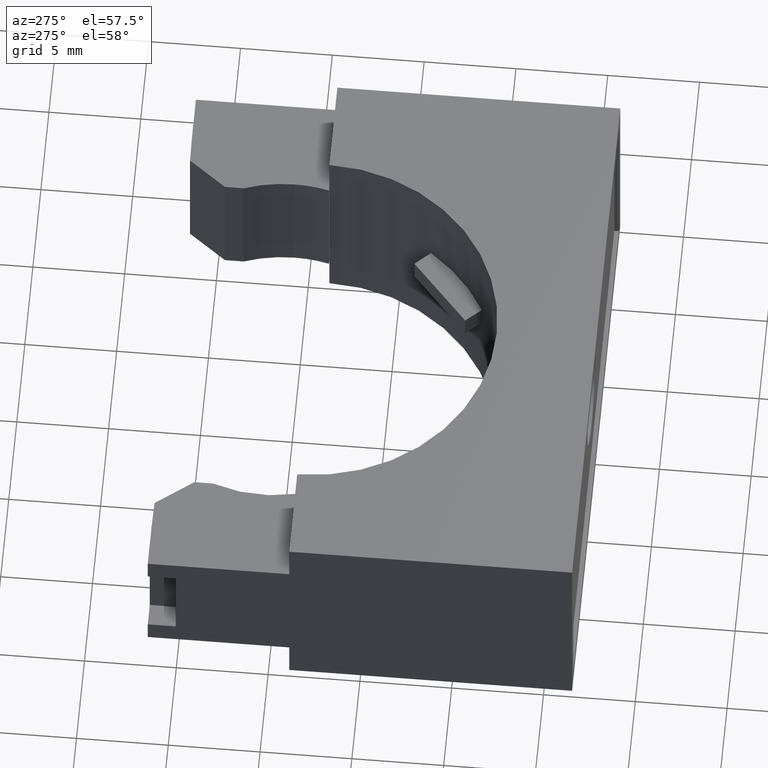
[diagram: clean part render]
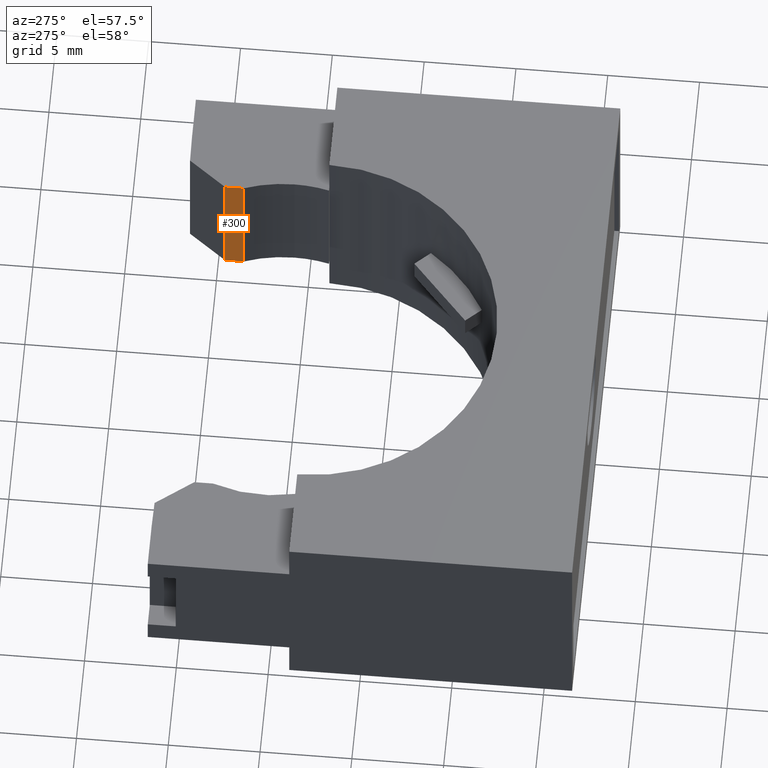
[diagram: same view with one face highlighted and labeled with its STEP entity id]
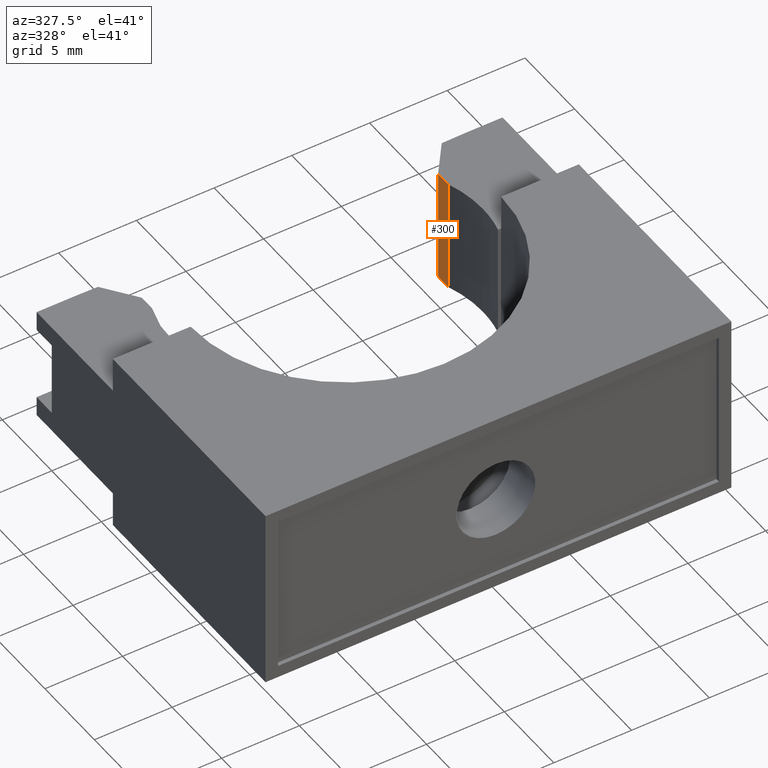
[diagram: same view with one face highlighted and labeled with its STEP entity id]
A machine part, auxiliary view. The second image highlights one B-rep face of the part: STEP entity #300.
A second angle (auxiliary view) of the same face is appended — the face is thin or edge-on in the first view.
In plain terms, the highlighted planar face has unit normal (1, -0, 0).
Its self-contained STEP definition (entity closure, byte-faithful):
#47 = EDGE_CURVE ( 'NONE', #48, #52, #1739, .T. ) ;
#48 = VERTEX_POINT ( 'NONE', #1735 ) ;
#52 = VERTEX_POINT ( 'NONE', #1755 ) ;
#288 = VERTEX_POINT ( 'NONE', #1036 ) ;
#300 = ADVANCED_FACE ( 'NONE', ( #1009 ), #1064, .F. ) ;
#301 = EDGE_LOOP ( 'NONE', ( #302, #363, #366, #368 ) ) ;
#302 = ORIENTED_EDGE ( 'NONE', *, *, #303, .T. ) ;
#303 = EDGE_CURVE ( 'NONE', #52, #288, #1048, .T. ) ;
#363 = ORIENTED_EDGE ( 'NONE', *, *, #364, .F. ) ;
#364 = EDGE_CURVE ( 'NONE', #365, #288, #1087, .T. ) ;
#365 = VERTEX_POINT ( 'NONE', #1083 ) ;
#366 = ORIENTED_EDGE ( 'NONE', *, *, #367, .T. ) ;
#367 = EDGE_CURVE ( 'NONE', #365, #48, #1118, .T. ) ;
#368 = ORIENTED_EDGE ( 'NONE', *, *, #47, .T. ) ;
#984 = DIRECTION ( 'NONE',  ( 0.0000000000000000000, 1.000000000000000000, 2.251523071701317000E-016 ) ) ;
#985 = VECTOR ( 'NONE', #984, 39.37007874015748100 ) ;
#1009 = FACE_OUTER_BOUND ( 'NONE', #301, .T. ) ;
#1036 = CARTESIAN_POINT ( 'NONE',  ( 0.3753125000000003300, 0.3739665354330712900, 0.3804500000000001800 ) ) ;
#1047 = CARTESIAN_POINT ( 'NONE',  ( 0.3753125000000004900, 0.3338541666666669000, 0.3804500000000002900 ) ) ;
#1048 = LINE ( 'NONE', #1047, #985 ) ;
#1049 = DIRECTION ( 'NONE',  ( 0.0000000000000000000, 0.0000000000000000000, -1.000000000000000000 ) ) ;
#1050 = DIRECTION ( 'NONE',  ( 1.000000000000000000, -0.0000000000000000000, 0.0000000000000000000 ) ) ;
#1062 = CARTESIAN_POINT ( 'NONE',  ( 0.3753125000000004900, 0.3338541666666669500, 0.0000000000000000000 ) ) ;
#1063 = AXIS2_PLACEMENT_3D ( 'NONE', #1062, #1050, #1049 ) ;
#1064 = PLANE ( 'NONE',  #1063 ) ;
#1083 = CARTESIAN_POINT ( 'NONE',  ( 0.3753125000000003300, 0.3739665354330712900, 0.08954999999999972700 ) ) ;
#1084 = DIRECTION ( 'NONE',  ( -0.0000000000000000000, -0.0000000000000000000, 1.000000000000000000 ) ) ;
#1085 = VECTOR ( 'NONE', #1084, 39.37007874015748100 ) ;
#1086 = CARTESIAN_POINT ( 'NONE',  ( 0.3753125000000003300, 0.3739665354330712900, 0.0000000000000000000 ) ) ;
#1087 = LINE ( 'NONE', #1086, #1085 ) ;
#1115 = DIRECTION ( 'NONE',  ( 0.0000000000000000000, -1.000000000000000000, -1.125761535850658700E-016 ) ) ;
#1116 = VECTOR ( 'NONE', #1115, 39.37007874015748100 ) ;
#1117 = CARTESIAN_POINT ( 'NONE',  ( 0.3753125000000004900, 0.3338541666666669500, 0.08954999999999975500 ) ) ;
#1118 = LINE ( 'NONE', #1117, #1116 ) ;
#1735 = CARTESIAN_POINT ( 'NONE',  ( 0.3753125000000004900, 0.3338541666666669500, 0.08954999999999975500 ) ) ;
#1736 = DIRECTION ( 'NONE',  ( -0.0000000000000000000, -0.0000000000000000000, 1.000000000000000000 ) ) ;
#1737 = VECTOR ( 'NONE', #1736, 39.37007874015748100 ) ;
#1738 = CARTESIAN_POINT ( 'NONE',  ( 0.3753125000000004900, 0.3338541666666669500, 0.0000000000000000000 ) ) ;
#1739 = LINE ( 'NONE', #1738, #1737 ) ;
#1755 = CARTESIAN_POINT ( 'NONE',  ( 0.3753125000000004900, 0.3338541666666669500, 0.3804500000000002300 ) ) ;